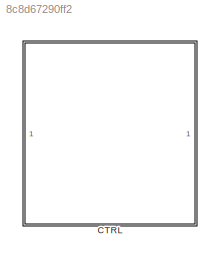
MODEL slx_8c8d67290ff2
KIND model
CONFIG AbsTol = auto
CONFIG EnableMultiTasking = off
CONFIG FixedStep = auto
CONFIG MaxStep = auto
CONFIG MinStep = auto
CONFIG RelTol = 1e-3
CONFIG SampleTimeConstraint = Unconstrained
CONFIG SolverName = VariableStepAuto
CONFIG StartTime = 0.0
CONFIG StopTime = 10.0
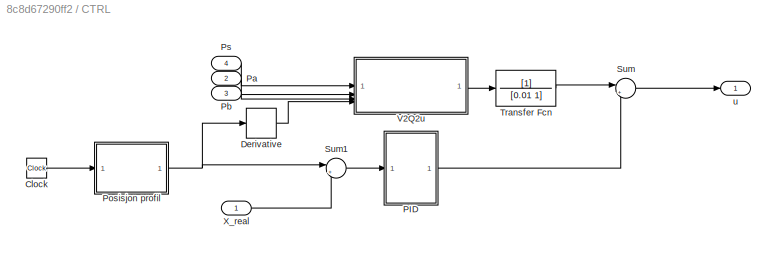
BLOCK [SubSystem] CTRL
  PortSchema = {"entries":[{"content":{"sides":[{"content":{},"type":"ConnectorPlacement.EquallySpacedRectSide","uuid":"e7dc98bc-0c39-42fc-9d44-5c528a861935"},{"content":{"connectorIds":["In2","In3","Out1","In4"],"side":"RIGHT"},"type":"ConnectorPlacement.EquallySpacedRectSide","uuid":"7a7fb2e4-7f4e-4840-80a8-3a9723ecfbf6"},{"content":{"connectorIds":["In1"],"side":"TOP"},"type":"ConnectorPlacement.EquallySpaced...<+241ch>
BLOCK [Clock] CTRL/Clock
BLOCK [Derivative] CTRL/Derivative
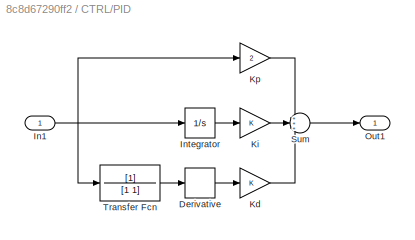
BLOCK [SubSystem] CTRL/PID
BLOCK [Derivative] CTRL/PID/Derivative
BLOCK [Inport] CTRL/PID/In1
BLOCK [Integrator] CTRL/PID/Integrator
BLOCK [Gain] CTRL/PID/Kd
BLOCK [Gain] CTRL/PID/Ki
BLOCK [Gain] CTRL/PID/Kp
  Gain = 2
BLOCK [Outport] CTRL/PID/Out1
BLOCK [Sum] CTRL/PID/Sum
  Inputs = +++
BLOCK [TransferFcn] CTRL/PID/Transfer Fcn
  Denominator = [1 1]
BLOCK [Inport] CTRL/Pa
  Port = 2
BLOCK [Inport] CTRL/Pb
  Port = 3
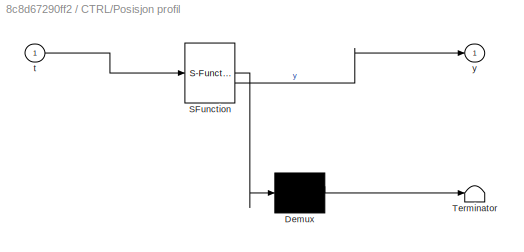
BLOCK [SubSystem] CTRL/Posisjon profil
  ErrorFcn = Stateflow.Translate.translate
  PermitHierarchicalResolution = ExplicitOnly
  SFBlockType = MATLAB Function
  TreatAsAtomicUnit = on
BLOCK [Demux] CTRL/Posisjon profil/ Demux 
  Outputs = 1
BLOCK [S-Function] CTRL/Posisjon profil/ SFunction 
  EnableBusSupport = on
  FunctionName = sf_sfun
  PortCounts = [1 2]
  SFcnIsStateOwnerBlock = off
  SFunctionDeploymentMode = off
  Tag = Stateflow S-Function 4
BLOCK [Terminator] CTRL/Posisjon profil/ Terminator 
BLOCK [Inport] CTRL/Posisjon profil/t
BLOCK [Outport] CTRL/Posisjon profil/y
BLOCK [Inport] CTRL/Ps
  Port = 4
BLOCK [Sum] CTRL/Sum
  Inputs = |++
BLOCK [Sum] CTRL/Sum1
  Inputs = |+-
BLOCK [TransferFcn] CTRL/Transfer Fcn
  Denominator = [0.01 1]
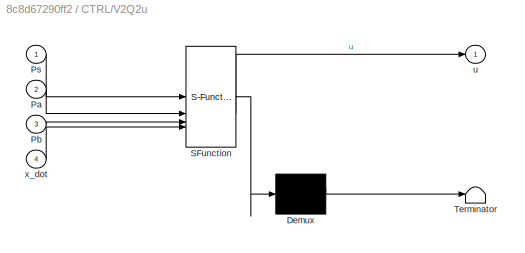
BLOCK [SubSystem] CTRL/V2Q2u
  ErrorFcn = Stateflow.Translate.translate
  PermitHierarchicalResolution = ExplicitOnly
  SFBlockType = MATLAB Function
  TreatAsAtomicUnit = on
BLOCK [Demux] CTRL/V2Q2u/ Demux 
  Outputs = 1
BLOCK [S-Function] CTRL/V2Q2u/ SFunction 
  EnableBusSupport = on
  FunctionName = sf_sfun
  PortCounts = [4 2]
  SFcnIsStateOwnerBlock = off
  SFunctionDeploymentMode = off
  Tag = Stateflow S-Function 5
BLOCK [Terminator] CTRL/V2Q2u/ Terminator 
BLOCK [Inport] CTRL/V2Q2u/Pa
  Port = 2
BLOCK [Inport] CTRL/V2Q2u/Pb
  Port = 3
BLOCK [Inport] CTRL/V2Q2u/Ps
BLOCK [Outport] CTRL/V2Q2u/u
BLOCK [Inport] CTRL/V2Q2u/x_dot
  Port = 4
BLOCK [Inport] CTRL/X_real
BLOCK [Outport] CTRL/u
LINE CTRL/Clock:1 -> CTRL/Posisjon profil:1
LINE CTRL/Derivative:1 -> CTRL/V2Q2u:4
LINE CTRL/PID/Derivative:1 -> CTRL/PID/Kd:1
NET CTRL/PID/In1:1 -> CTRL/PID/Integrator:1, CTRL/PID/Kp:1, CTRL/PID/Transfer Fcn:1
LINE CTRL/PID/Integrator:1 -> CTRL/PID/Ki:1
LINE CTRL/PID/Kd:1 -> CTRL/PID/Sum:3
LINE CTRL/PID/Ki:1 -> CTRL/PID/Sum:2
LINE CTRL/PID/Kp:1 -> CTRL/PID/Sum:1
LINE CTRL/PID/Sum:1 -> CTRL/PID/Out1:1
LINE CTRL/PID/Transfer Fcn:1 -> CTRL/PID/Derivative:1
LINE CTRL/PID:1 -> CTRL/Sum:2
LINE CTRL/Pa:1 -> CTRL/V2Q2u:2
LINE CTRL/Pb:1 -> CTRL/V2Q2u:3
NET CTRL/Posisjon profil:1 -> CTRL/Derivative:1, CTRL/Sum1:1
LINE CTRL/Ps:1 -> CTRL/V2Q2u:1
LINE CTRL/Sum1:1 -> CTRL/PID:1
LINE CTRL/Sum:1 -> CTRL/u:1
LINE CTRL/Transfer Fcn:1 -> CTRL/Sum:1
LINE CTRL/V2Q2u:1 -> CTRL/Transfer Fcn:1
LINE CTRL/X_real:1 -> CTRL/Sum1:2
note: NET lines group one-source signal fan-out (src -> all destinations, sorted); 1:1 wires keep LINE
CHART CTRL/Posisjon profil states=1 transitions=1
  STATE_LABEL 'eML_blk_kernel()'
  STATE_LABEL 'SCRIPT:\nfunction y  = fcn(t)\nv_max = 0.1;\nv_0 = 0;\nx_0 = 0;\nx_max = 0.05;\nx_max = 0.25;\nt_ramp = 1;\nv_ref = x_max/t_ramp;\nstart_time = 1;\nhold_time = 1;\nif v_ref>v_max\n    v_ref=v_max;\n    y=0;\nend\nt1 = start_time;\nt2 = t1 + t_ramp;\nt3 = t2 + hold_time;\nt4 = t3 + t_ramp; \nt5 = t4 + start_time;\nt6 = t5 + t_ramp;\nt7 = t6 + hold_time;\nt8 = t7 + t_ramp;\nt9 = t8 + start_time;\nif t < t1\n    y = x_0;\nels...<+488ch>'
CHART CTRL/V2Q2u states=1 transitions=1
  STATE_LABEL 'eML_blk_kernel()'
  STATE_LABEL 'SCRIPT:\nfunction u = fcn(Ps, Pa, Pb, x_dot)\n\nphi = 0.7130;\nA = 33.1/100^2; % Area\nBW = 0; % deadband\nSpoolTravel = 7; % Maximum Spool Travel\na = (SpoolTravel-BW)/25; % Valve Slope Characteristic [mm/(L/min)]\ndP_0 = 7e5; % Pressure drop with compansator\n\nif x_dot > 0\n    Q = x_dot * A; % Wanted Flow\n    dP = (Ps-Pa)*1e5;\n    dp_ref = abs(dP_0/dP);\n    %dp_ref = 1;\n    Q_star = (Q * sqrt(dp_ref)) * ...<+370ch>'
CHART  states=0 transitions=0
CHART  states=0 transitions=0
